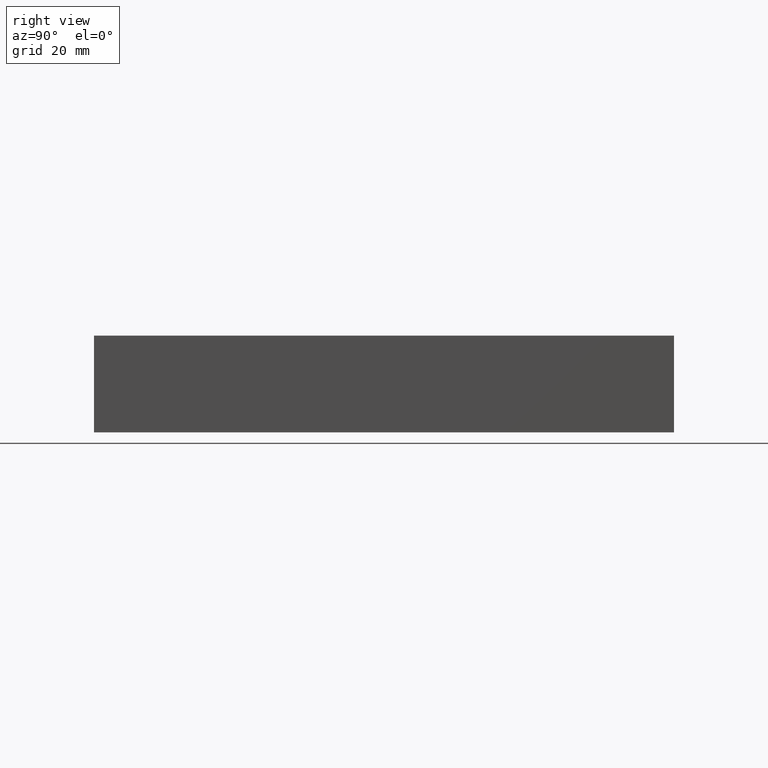
[diagram: clean part render]
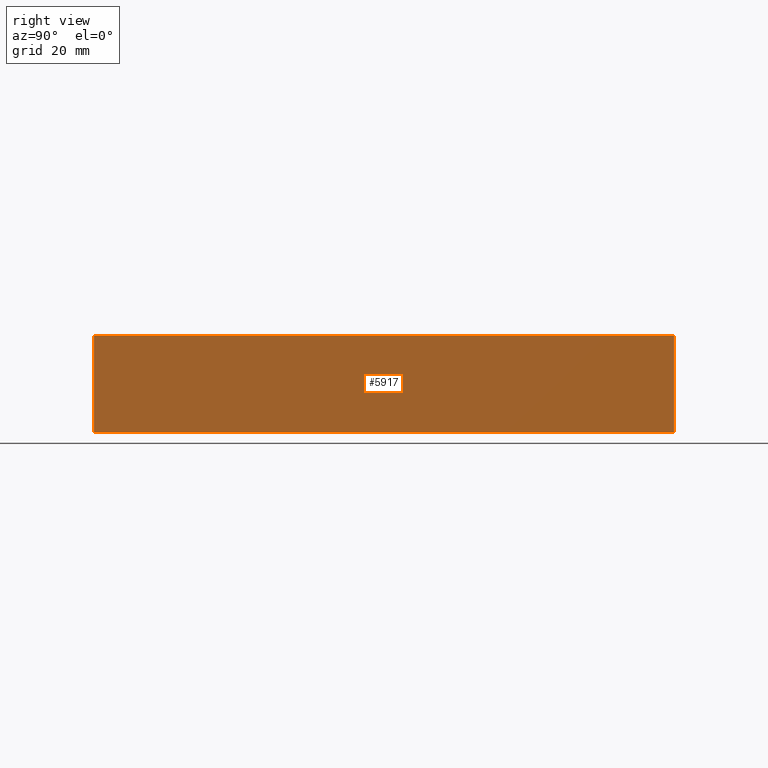
[diagram: same view with one face highlighted and labeled with its STEP entity id]
A machine part, right view. The second image highlights one B-rep face of the part: STEP entity #5917.
In plain terms, the highlighted planar face has unit normal (1, 0, 0).
Its self-contained STEP definition (entity closure, byte-faithful):
#305=PLANE('',#6181);
#606=FACE_OUTER_BOUND('',#932,.T.);
#932=EDGE_LOOP('',(#5241,#5242,#5243,#5244));
#1166=LINE('',#8939,#1780);
#1567=LINE('',#9957,#2181);
#1568=LINE('',#9959,#2182);
#1569=LINE('',#9960,#2183);
#1780=VECTOR('',#6505,10.);
#2181=VECTOR('',#7290,10.);
#2182=VECTOR('',#7293,10.);
#2183=VECTOR('',#7294,10.);
#2577=VERTEX_POINT('',#8936);
#2578=VERTEX_POINT('',#8938);
#2874=VERTEX_POINT('',#9953);
#2875=VERTEX_POINT('',#9955);
#3228=EDGE_CURVE('',#2577,#2578,#1166,.T.);
#3673=EDGE_CURVE('',#2874,#2875,#1567,.T.);
#3674=EDGE_CURVE('',#2577,#2874,#1568,.T.);
#3675=EDGE_CURVE('',#2578,#2875,#1569,.T.);
#5241=ORIENTED_EDGE('',*,*,#3674,.T.);
#5242=ORIENTED_EDGE('',*,*,#3673,.T.);
#5243=ORIENTED_EDGE('',*,*,#3675,.F.);
#5244=ORIENTED_EDGE('',*,*,#3228,.F.);
#5917=ADVANCED_FACE('',(#606),#305,.T.);
#6181=AXIS2_PLACEMENT_3D('',#9958,#7291,#7292);
#6505=DIRECTION('',(0.,0.,1.));
#7290=DIRECTION('',(0.,0.,1.));
#7291=DIRECTION('center_axis',(1.,0.,0.));
#7292=DIRECTION('ref_axis',(0.,1.,0.));
#7293=DIRECTION('',(0.,1.,0.));
#7294=DIRECTION('',(0.,1.,0.));
#8936=CARTESIAN_POINT('',(114.3,0.,0.));
#8938=CARTESIAN_POINT('',(114.3,0.,25.4));
#8939=CARTESIAN_POINT('',(114.3,0.,0.));
#9953=CARTESIAN_POINT('',(114.3,152.4,0.));
#9955=CARTESIAN_POINT('',(114.3,152.4,25.4));
#9957=CARTESIAN_POINT('',(114.3,152.4,0.));
#9958=CARTESIAN_POINT('Origin',(114.3,0.,0.));
#9959=CARTESIAN_POINT('',(114.3,0.,0.));
#9960=CARTESIAN_POINT('',(114.3,0.,25.4));